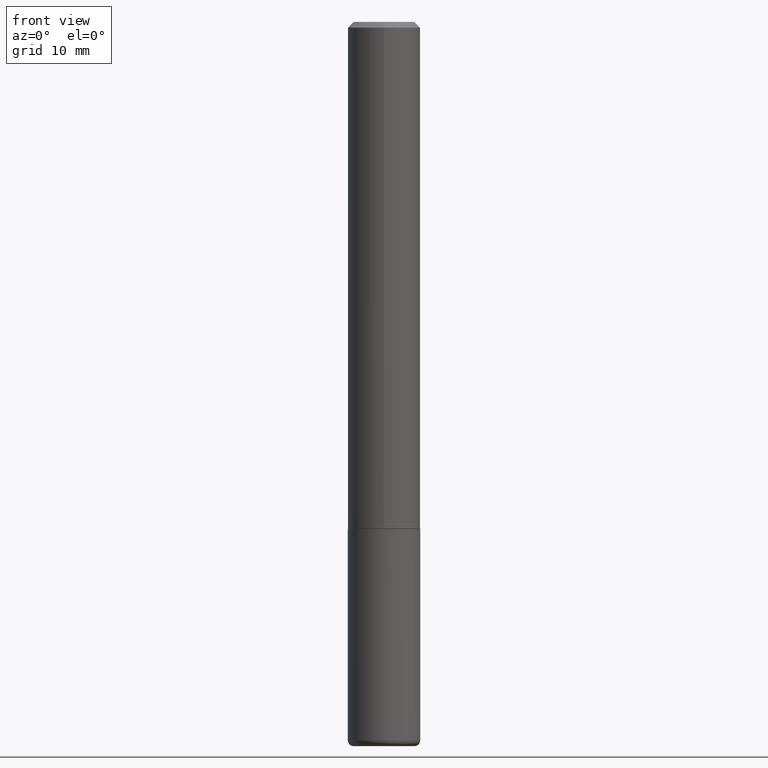
[diagram: clean part render]
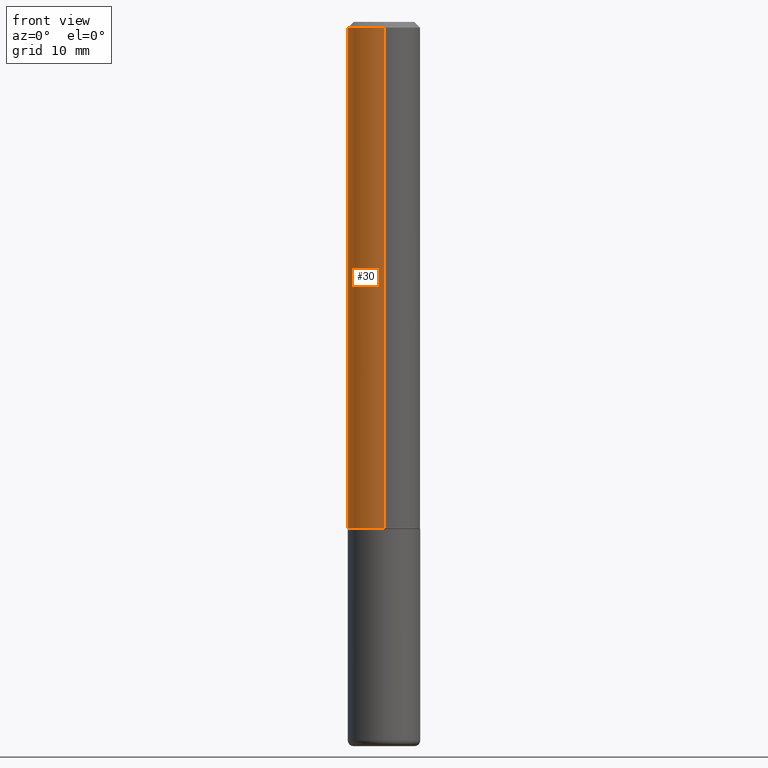
[diagram: same view with one face highlighted and labeled with its STEP entity id]
A machine part, front view. The second image highlights one B-rep face of the part: STEP entity #30.
In plain terms, the highlighted cylindrical surface (edge-blend (fillet) strip) has radius 3.175 mm, axis along (-0, 0, 1).
Its self-contained STEP definition (entity closure, byte-faithful):
#16 = CARTESIAN_POINT ( 'NONE',  ( 8.881784197001260212E-16, 0.1250000000000001110, -4.362845215594827410E-16 ) ) ;
#17 = DIRECTION ( 'NONE',  ( -6.982962677686266711E-15, -1.000000000000000000, 3.490276172475858772E-15 ) ) ;
#25 = LINE ( 'NONE', #276, #185 ) ;
#30 = ADVANCED_FACE ( 'NONE', ( #240 ), #341, .T. ) ;
#40 = CIRCLE ( 'NONE', #128, 0.1250000000000002498 ) ;
#50 = AXIS2_PLACEMENT_3D ( 'NONE', #53, #183, #17 ) ;
#53 = CARTESIAN_POINT ( 'NONE',  ( 0.000000000000000000, 0.000000000000000000, 0.000000000000000000 ) ) ;
#55 = DIRECTION ( 'NONE',  ( -2.446310369361453361E-29, 3.490276172475858378E-15, 1.000000000000000000 ) ) ;
#97 = VERTEX_POINT ( 'NONE', #350 ) ;
#106 = AXIS2_PLACEMENT_3D ( 'NONE', #211, #236, #369 ) ;
#120 = CARTESIAN_POINT ( 'NONE',  ( 4.278596836013182697E-29, -6.104493025660276744E-15, -1.749000000000000110 ) ) ;
#122 = CARTESIAN_POINT ( 'NONE',  ( -8.575622497214408537E-16, -0.1250000000000000555, -0.01999999999999959102 ) ) ;
#128 = AXIS2_PLACEMENT_3D ( 'NONE', #120, #245, #391 ) ;
#145 = VERTEX_POINT ( 'NONE', #122 ) ;
#147 = CARTESIAN_POINT ( 'NONE',  ( -8.728703347107421208E-16, -0.1250000000000063560, -1.748999999999999666 ) ) ;
#183 = DIRECTION ( 'NONE',  ( -2.446310369361453361E-29, 3.490276172475858772E-15, 1.000000000000000000 ) ) ;
#185 = VECTOR ( 'NONE', #407, 39.37007874015748143 ) ;
#189 = EDGE_CURVE ( 'NONE', #396, #145, #25, .T. ) ;
#193 = EDGE_CURVE ( 'NONE', #307, #396, #40, .T. ) ;
#211 = CARTESIAN_POINT ( 'NONE',  ( 4.892620738722911906E-31, -6.980552344951725975E-17, -0.02000000000000002470 ) ) ;
#236 = DIRECTION ( 'NONE',  ( -2.446310369361453361E-29, 3.490276172475858772E-15, 1.000000000000000000 ) ) ;
#240 = FACE_OUTER_BOUND ( 'NONE', #394, .T. ) ;
#241 = ORIENTED_EDGE ( 'NONE', *, *, #189, .T. ) ;
#242 = CIRCLE ( 'NONE', #106, 0.1250000000000000000 ) ;
#245 = DIRECTION ( 'NONE',  ( -2.446310369361453361E-29, 3.490276172475858772E-15, 1.000000000000000000 ) ) ;
#260 = ORIENTED_EDGE ( 'NONE', *, *, #193, .T. ) ;
#270 = ORIENTED_EDGE ( 'NONE', *, *, #381, .F. ) ;
#276 = CARTESIAN_POINT ( 'NONE',  ( -8.728703347107841277E-16, -0.1250000000000001110, 4.362845215594827410E-16 ) ) ;
#304 = ORIENTED_EDGE ( 'NONE', *, *, #387, .F. ) ;
#307 = VERTEX_POINT ( 'NONE', #338 ) ;
#309 = LINE ( 'NONE', #16, #319 ) ;
#319 = VECTOR ( 'NONE', #55, 39.37007874015748143 ) ;
#338 = CARTESIAN_POINT ( 'NONE',  ( 8.881784197001479121E-16, 0.1249999999999941019, -1.749000000000000554 ) ) ;
#341 = CYLINDRICAL_SURFACE ( 'NONE', #50, 0.1250000000000001110 ) ;
#350 = CARTESIAN_POINT ( 'NONE',  ( 8.728703347107837333E-16, 0.1249999999999999306, -0.02000000000000046185 ) ) ;
#369 = DIRECTION ( 'NONE',  ( -6.982962677686265922E-15, -1.000000000000000000, 3.483106191921935554E-15 ) ) ;
#381 = EDGE_CURVE ( 'NONE', #97, #145, #242, .T. ) ;
#387 = EDGE_CURVE ( 'NONE', #307, #97, #309, .T. ) ;
#391 = DIRECTION ( 'NONE',  ( -6.982962677686265133E-15, -1.000000000000000000, 4.370956789862812472E-15 ) ) ;
#394 = EDGE_LOOP ( 'NONE', ( #304, #260, #241, #270 ) ) ;
#396 = VERTEX_POINT ( 'NONE', #147 ) ;
#407 = DIRECTION ( 'NONE',  ( -2.446310369361453361E-29, 3.490276172475858378E-15, 1.000000000000000000 ) ) ;